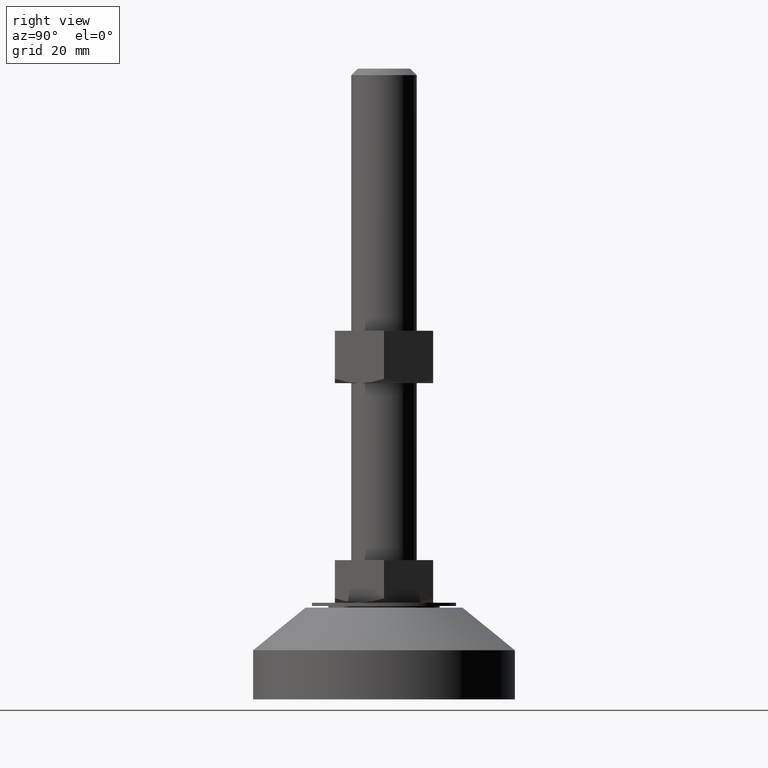
[diagram: clean part render]
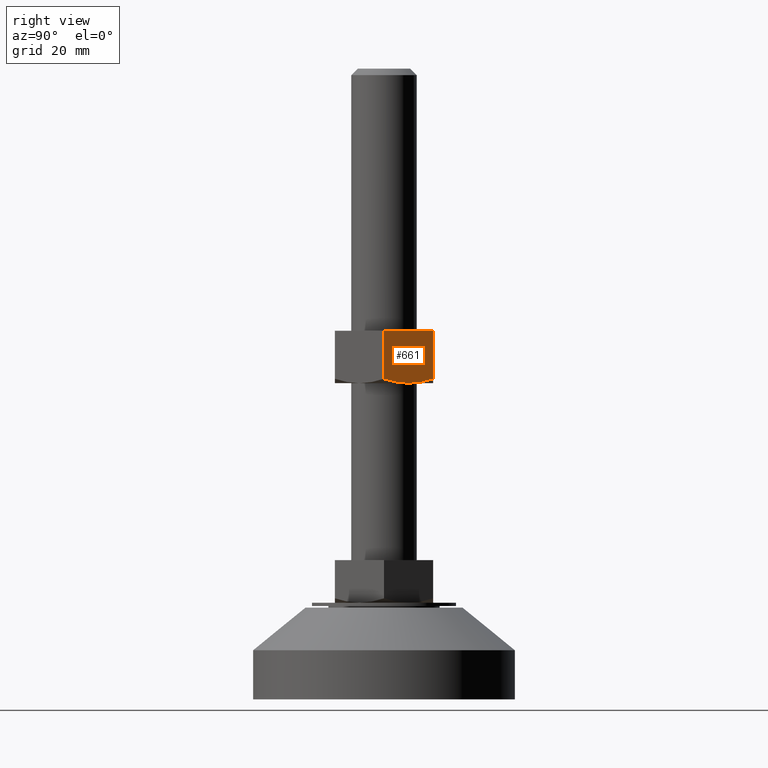
[diagram: same view with one face highlighted and labeled with its STEP entity id]
A machine part, right view. The second image highlights one B-rep face of the part: STEP entity #661.
In plain terms, the highlighted face is a freeform B-spline surface patch.
Its self-contained STEP definition (entity closure, byte-faithful):
#224=CARTESIAN_POINT('',(12.990381056797681,7.500000000018040,96.500000000000000));
#225=VERTEX_POINT('',#224);
#353=CARTESIAN_POINT('',(8.660254037843810,15.0,97.839745962164798));
#354=VERTEX_POINT('',#353);
#355=CARTESIAN_POINT('',(12.990381056797681,7.500000000018040,96.500000000000000));
#356=CARTESIAN_POINT('',(12.901096470844591,7.654645439148735,96.500000036116020));
#357=CARTESIAN_POINT('',(12.811679624323659,7.809519960375567,96.501841569814331));
#358=CARTESIAN_POINT('',(12.629812694746750,8.124522722619325,96.509347877224258));
#359=CARTESIAN_POINT('',(12.537502733118780,8.284408266203693,96.515126012679275));
#360=CARTESIAN_POINT('',(12.261257601409680,8.762878869667418,96.538242611801095));
#361=CARTESIAN_POINT('',(12.077734031787619,9.080751016639225,96.561379370471428));
#362=CARTESIAN_POINT('',(11.528999802976450,10.031186580792310,96.652963666495566));
#363=CARTESIAN_POINT('',(11.165629917421100,10.660561684514651,96.743637065373804));
#364=CARTESIAN_POINT('',(10.081989559210770,12.537481842067100,97.093768839118809));
#365=CARTESIAN_POINT('',(9.368163177432791,13.773865403089619,97.431034429851806));
#366=CARTESIAN_POINT('',(8.660254037843821,15.000000000000091,97.839745962164400));
#367=B_SPLINE_CURVE_WITH_KNOTS('',3,(#355,#356,#357,#358,#359,#360,#361,#362,#363,#364,#365,#366),.UNSPECIFIED.,.F.,.U.,(4,2,2,2,2,4),(0.500936598791500,0.531250000000000,0.562500000000000,0.625000000000000,0.750000000000000,1.0),.UNSPECIFIED.);
#368=EDGE_CURVE('',#225,#354,#367,.T.);
#405=CARTESIAN_POINT('',(17.320508075689052,-1.470178E-012,97.839745962164798));
#406=VERTEX_POINT('',#405);
#407=CARTESIAN_POINT('',(17.320508075689080,-1.474224E-012,97.839745962164656));
#408=CARTESIAN_POINT('',(16.613480354092751,1.224607936163030,97.431543316767332));
#409=CARTESIAN_POINT('',(15.901297954757720,2.458144036067627,97.095110476245708));
#410=CARTESIAN_POINT('',(14.821884865747830,4.327742348587627,96.745558985831607));
#411=CARTESIAN_POINT('',(14.460219468945670,4.954165191188539,96.654953438834127));
#412=CARTESIAN_POINT('',(13.732676765448771,6.214306118321182,96.532385768631329));
#413=CARTESIAN_POINT('',(13.366795819236380,6.848030506682423,96.500474319296558));
#414=CARTESIAN_POINT('',(12.995898215202610,7.490444001274485,96.500001757458577));
#415=CARTESIAN_POINT('',(12.993139699088911,7.495221891336909,96.500000000562537));
#416=CARTESIAN_POINT('',(12.990381056714240,7.500000000089750,96.500000001628052));
#417=B_SPLINE_CURVE_WITH_KNOTS('',3,(#407,#408,#409,#410,#411,#412,#413,#414,#415,#416),.UNSPECIFIED.,.F.,.U.,(4,2,2,2,4),(0.0,0.250000000000000,0.375000000000000,0.500000000000000,0.500936598769659),.UNSPECIFIED.);
#418=EDGE_CURVE('',#406,#225,#417,.T.);
#590=CARTESIAN_POINT('',(8.660254037843810,15.0,112.500000000000000));
#591=VERTEX_POINT('',#590);
#620=CARTESIAN_POINT('',(17.320508075688199,5.684342E-014,112.500000000000000));
#621=VERTEX_POINT('',#620);
#627=CARTESIAN_POINT('',(17.320508075688199,5.684342E-014,112.500000000000000));
#628=CARTESIAN_POINT('',(8.660254037843810,15.0,112.500000000000000));
#629=QUASI_UNIFORM_CURVE('',1,(#627,#628),.UNSPECIFIED.,.F.,.U.);
#630=EDGE_CURVE('',#621,#591,#629,.T.);
#641=CARTESIAN_POINT('',(17.753087748094192,-0.749249970928620,95.700800031011113));
#642=CARTESIAN_POINT('',(8.227674133152624,15.749250373258540,95.700800031011113));
#643=CARTESIAN_POINT('',(17.753087748094192,-0.749249970928620,113.299200398142300));
#644=CARTESIAN_POINT('',(8.227674133152624,15.749250373258540,113.299200398142300));
#645=B_SPLINE_SURFACE_WITH_KNOTS('',1,1,((#641,#643),(#642,#644)),.UNSPECIFIED.,.F.,.F.,.U.,(2,2),(2,2),(0.0,19.050827229883168),(0.0,17.598400367131219),.UNSPECIFIED.);
#646=CARTESIAN_POINT('',(17.320508075689052,-1.470178E-012,97.839745962164798));
#647=CARTESIAN_POINT('',(17.320508075688199,5.684342E-014,112.500000000000000));
#648=QUASI_UNIFORM_CURVE('',1,(#646,#647),.UNSPECIFIED.,.F.,.U.);
#649=EDGE_CURVE('',#406,#621,#648,.T.);
#650=ORIENTED_EDGE('',*,*,#649,.F.);
#651=ORIENTED_EDGE('',*,*,#418,.T.);
#652=ORIENTED_EDGE('',*,*,#368,.T.);
#653=CARTESIAN_POINT('',(8.660254037843810,15.0,97.839745962164798));
#654=CARTESIAN_POINT('',(8.660254037843810,15.0,112.500000000000000));
#655=QUASI_UNIFORM_CURVE('',1,(#653,#654),.UNSPECIFIED.,.F.,.U.);
#656=EDGE_CURVE('',#354,#591,#655,.T.);
#657=ORIENTED_EDGE('',*,*,#656,.T.);
#658=ORIENTED_EDGE('',*,*,#630,.F.);
#659=EDGE_LOOP('',(#650,#651,#652,#657,#658));
#660=FACE_OUTER_BOUND('',#659,.T.);
#661=ADVANCED_FACE('',(#660),#645,.T.);